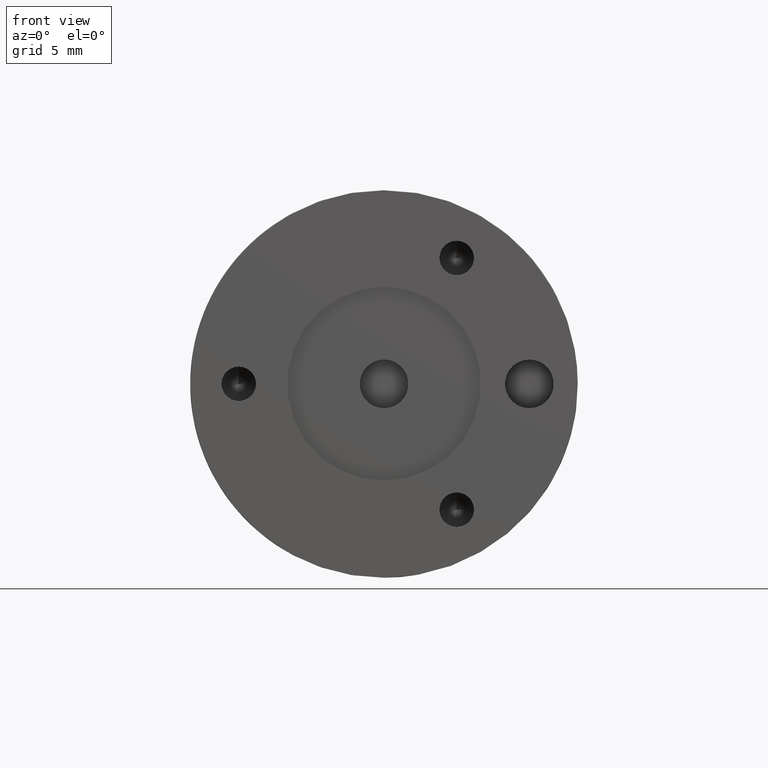
[diagram: clean part render]
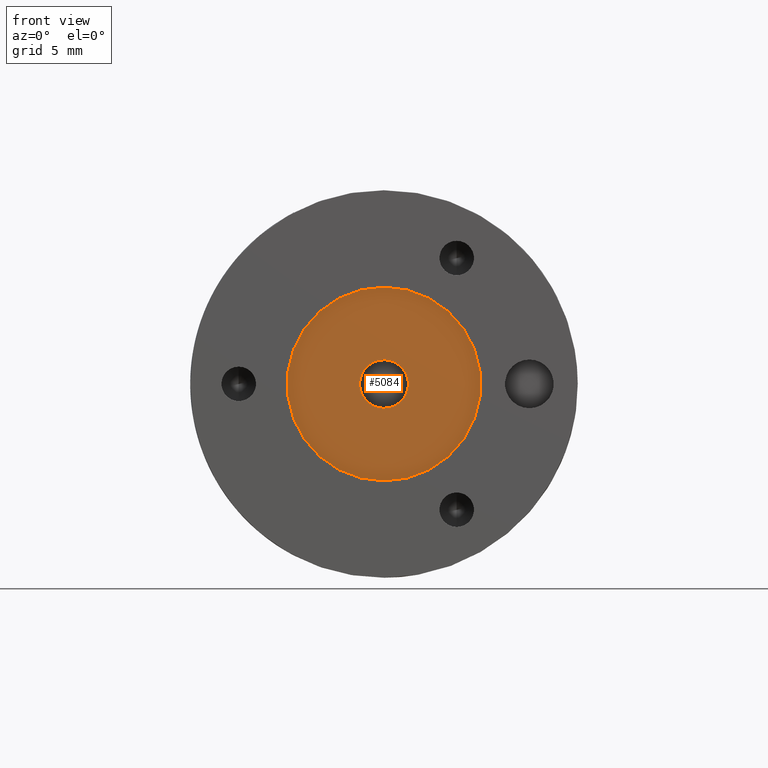
[diagram: same view with one face highlighted and labeled with its STEP entity id]
A machine part, front view. The second image highlights one B-rep face of the part: STEP entity #5084.
In plain terms, the highlighted planar face has unit normal (0, 1, 0).
Its self-contained STEP definition (entity closure, byte-faithful):
#2125 = FACE_OUTER_BOUND ( 'NONE', #5066, .T. ) ;
#2126 = FACE_BOUND ( 'NONE', #5030, .T. ) ;
#2131 = AXIS2_PLACEMENT_3D ( 'NONE', #2194, #2193, #2192 ) ;
#2178 = DIRECTION ( 'NONE',  ( 0.0000000000000000000, -0.0000000000000000000, 1.000000000000000000 ) ) ;
#2179 = DIRECTION ( 'NONE',  ( 0.0000000000000000000, 1.000000000000000000, 0.0000000000000000000 ) ) ;
#2182 = CARTESIAN_POINT ( 'NONE',  ( 0.0000000000000000000, 0.6350000000000000100, 0.0000000000000000000 ) ) ;
#2183 = DIRECTION ( 'NONE',  ( 0.0000000000000000000, 0.0000000000000000000, 1.000000000000000000 ) ) ;
#2184 = DIRECTION ( 'NONE',  ( 0.0000000000000000000, 1.000000000000000000, 0.0000000000000000000 ) ) ;
#2185 = CARTESIAN_POINT ( 'NONE',  ( 0.0000000000000000000, 0.6350000000000000100, 0.0000000000000000000 ) ) ;
#2186 = AXIS2_PLACEMENT_3D ( 'NONE', #2182, #2179, #2178 ) ;
#2190 = PLANE ( 'NONE',  #2186 ) ;
#2191 = CIRCLE ( 'NONE', #2197, 1.593850000000000200 ) ;
#2192 = DIRECTION ( 'NONE',  ( 0.0000000000000000000, 0.0000000000000000000, 1.000000000000000000 ) ) ;
#2193 = DIRECTION ( 'NONE',  ( 0.0000000000000000000, 1.000000000000000000, 0.0000000000000000000 ) ) ;
#2194 = CARTESIAN_POINT ( 'NONE',  ( 0.0000000000000000000, 0.6350000000000000100, 0.0000000000000000000 ) ) ;
#2195 = CIRCLE ( 'NONE', #2131, 6.349999999999999600 ) ;
#2197 = AXIS2_PLACEMENT_3D ( 'NONE', #2185, #2184, #2183 ) ;
#3547 = AXIS2_PLACEMENT_3D ( 'NONE', #3583, #3610, #3609 ) ;
#3576 = CIRCLE ( 'NONE', #3547, 6.349999999999999600 ) ;
#3583 = CARTESIAN_POINT ( 'NONE',  ( 0.0000000000000000000, 0.6350000000000000100, 0.0000000000000000000 ) ) ;
#3609 = DIRECTION ( 'NONE',  ( 0.0000000000000000000, 0.0000000000000000000, 1.000000000000000000 ) ) ;
#3610 = DIRECTION ( 'NONE',  ( 0.0000000000000000000, 1.000000000000000000, 0.0000000000000000000 ) ) ;
#3871 = CARTESIAN_POINT ( 'NONE',  ( 0.0000000000000000000, 0.6350000000000000100, -6.349999999999999600 ) ) ;
#3878 = CARTESIAN_POINT ( 'NONE',  ( 7.776507174585692200E-016, 0.6350000000000000100, 6.349999999999999600 ) ) ;
#3935 = CIRCLE ( 'NONE', #3943, 1.593850000000000200 ) ;
#3943 = AXIS2_PLACEMENT_3D ( 'NONE', #3970, #3969, #3968 ) ;
#3965 = CARTESIAN_POINT ( 'NONE',  ( 1.951903300821009100E-016, 0.6350000000000000100, 1.593850000000000200 ) ) ;
#3966 = CARTESIAN_POINT ( 'NONE',  ( 0.0000000000000000000, 0.6350000000000000100, -1.593850000000000200 ) ) ;
#3968 = DIRECTION ( 'NONE',  ( 0.0000000000000000000, 0.0000000000000000000, 1.000000000000000000 ) ) ;
#3969 = DIRECTION ( 'NONE',  ( 0.0000000000000000000, 1.000000000000000000, 0.0000000000000000000 ) ) ;
#3970 = CARTESIAN_POINT ( 'NONE',  ( 0.0000000000000000000, 0.6350000000000000100, 0.0000000000000000000 ) ) ;
#5030 = EDGE_LOOP ( 'NONE', ( #5086, #5042 ) ) ;
#5042 = ORIENTED_EDGE ( 'NONE', *, *, #5083, .T. ) ;
#5066 = EDGE_LOOP ( 'NONE', ( #5067, #5070 ) ) ;
#5067 = ORIENTED_EDGE ( 'NONE', *, *, #5353, .F. ) ;
#5070 = ORIENTED_EDGE ( 'NONE', *, *, #5079, .F. ) ;
#5079 = EDGE_CURVE ( 'NONE', #5391, #5396, #2195, .T. ) ;
#5083 = EDGE_CURVE ( 'NONE', #5433, #5418, #2191, .T. ) ;
#5084 = ADVANCED_FACE ( 'NONE', ( #2126, #2125 ), #2190, .F. ) ;
#5086 = ORIENTED_EDGE ( 'NONE', *, *, #5414, .T. ) ;
#5353 = EDGE_CURVE ( 'NONE', #5396, #5391, #3576, .T. ) ;
#5391 = VERTEX_POINT ( 'NONE', #3878 ) ;
#5396 = VERTEX_POINT ( 'NONE', #3871 ) ;
#5414 = EDGE_CURVE ( 'NONE', #5418, #5433, #3935, .T. ) ;
#5418 = VERTEX_POINT ( 'NONE', #3966 ) ;
#5433 = VERTEX_POINT ( 'NONE', #3965 ) ;